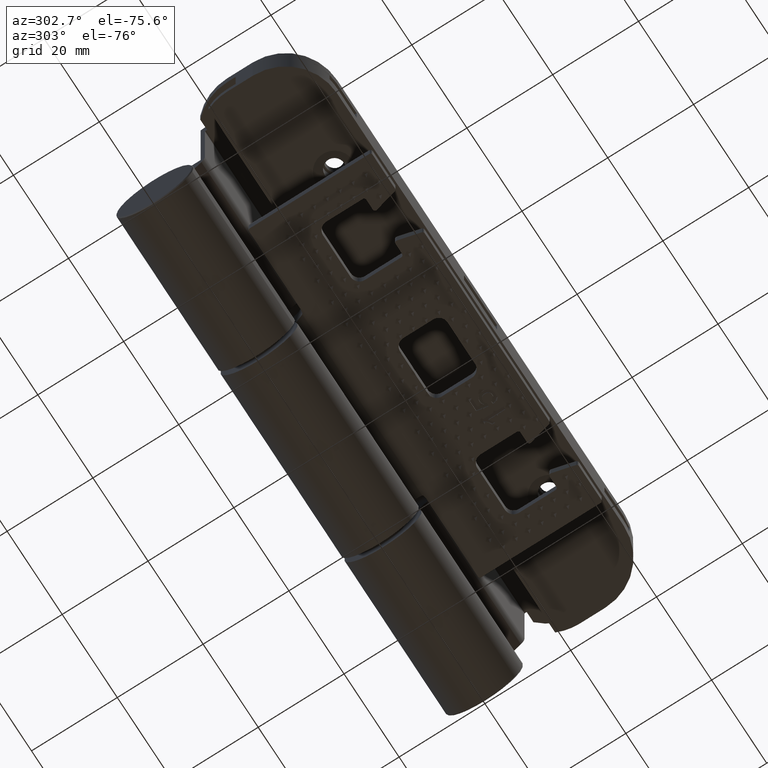
[diagram: clean part render]
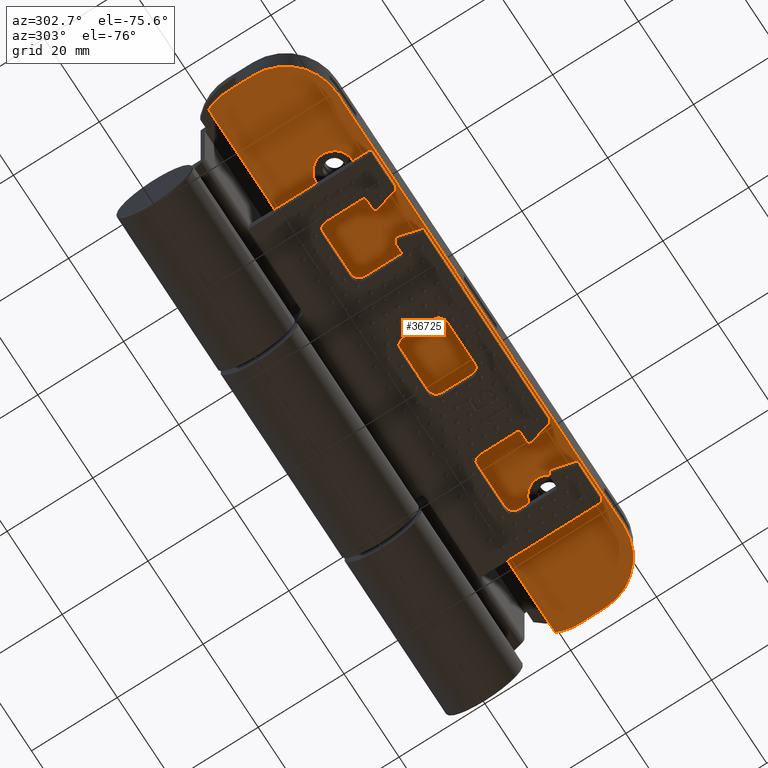
[diagram: same view with one face highlighted and labeled with its STEP entity id]
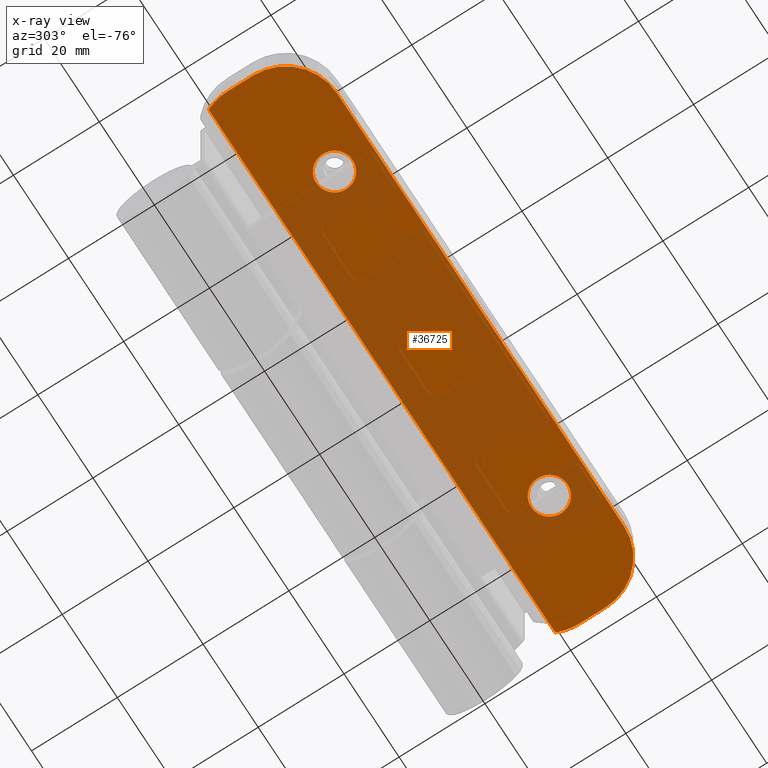
[diagram: x-ray of the same camera — body ghosted, the highlighted face saturated]
A machine part, auxiliary view. The second image highlights one B-rep face of the part: STEP entity #36725.
The next image is the same camera in x-ray: the body ghosted, the highlighted face saturated — about 47% of this face is hidden behind the body in this view.
In plain terms, the highlighted planar face has unit normal (0, -0, 1).
Its self-contained STEP definition (entity closure, byte-faithful):
#242 = EDGE_CURVE ( 'NONE', #28619, #4444, #31631, .T. ) ;
#469 = CIRCLE ( 'NONE', #8776, 4.249999999999990230 ) ;
#886 = EDGE_CURVE ( 'NONE', #8659, #4858, #5809, .T. ) ;
#1189 = CIRCLE ( 'NONE', #31901, 4.249999999999990230 ) ;
#1476 = EDGE_CURVE ( 'NONE', #36246, #27703, #469, .T. ) ;
#1643 = CARTESIAN_POINT ( 'NONE',  ( -2.500000000000043965, -39.00000000000018474, 2.000000000000017319 ) ) ;
#1655 = DIRECTION ( 'NONE',  ( -7.801111218853754580E-16, -1.000000000000000000, 5.215223172159257832E-16 ) ) ;
#2005 = EDGE_CURVE ( 'NONE', #12175, #36388, #49436, .T. ) ;
#2837 = EDGE_LOOP ( 'NONE', ( #20608, #18093, #4886, #3492, #4500, #15122, #7381, #37709 ) ) ;
#3492 = ORIENTED_EDGE ( 'NONE', *, *, #242, .T. ) ;
#4400 = EDGE_CURVE ( 'NONE', #47680, #28619, #49492, .T. ) ;
#4444 = VERTEX_POINT ( 'NONE', #5568 ) ;
#4500 = ORIENTED_EDGE ( 'NONE', *, *, #37109, .T. ) ;
#4858 = VERTEX_POINT ( 'NONE', #17920 ) ;
#4886 = ORIENTED_EDGE ( 'NONE', *, *, #4400, .T. ) ;
#5568 = CARTESIAN_POINT ( 'NONE',  ( 11.50000000000005329, 62.90871211463601753, 1.999999999999968914 ) ) ;
#5809 = LINE ( 'NONE', #38026, #35309 ) ;
#5964 = AXIS2_PLACEMENT_3D ( 'NONE', #9720, #30508, #6830 ) ;
#6769 = EDGE_CURVE ( 'NONE', #4858, #12175, #28030, .T. ) ;
#6830 = DIRECTION ( 'NONE',  ( -1.000000000000000000, -5.782411586589357639E-16, 2.168404344971009115E-16 ) ) ;
#7381 = ORIENTED_EDGE ( 'NONE', *, *, #6769, .T. ) ;
#8659 = VERTEX_POINT ( 'NONE', #36352 ) ;
#8776 = AXIS2_PLACEMENT_3D ( 'NONE', #51344, #31638, #39690 ) ;
#9523 = VECTOR ( 'NONE', #47958, 1000.000000000000000 ) ;
#9647 = PLANE ( 'NONE',  #49117 ) ;
#9703 = EDGE_CURVE ( 'NONE', #36388, #35676, #20878, .T. ) ;
#9720 = CARTESIAN_POINT ( 'NONE',  ( 0.4999999999999414912, -52.00000000000027001, 2.000000000000022649 ) ) ;
#9904 = FACE_BOUND ( 'NONE', #47880, .T. ) ;
#9912 = DIRECTION ( 'NONE',  ( -2.220446049250395911E-16, -5.215223172159268679E-16, 1.000000000000000000 ) ) ;
#11818 = DIRECTION ( 'NONE',  ( -1.000000000000000000, -5.782411586589366513E-16, 2.168404344971012319E-16 ) ) ;
#12175 = VERTEX_POINT ( 'NONE', #31015 ) ;
#12516 = EDGE_CURVE ( 'NONE', #35676, #47680, #22841, .T. ) ;
#15122 = ORIENTED_EDGE ( 'NONE', *, *, #886, .T. ) ;
#16854 = VERTEX_POINT ( 'NONE', #17376 ) ;
#17364 = DIRECTION ( 'NONE',  ( -1.000000000000000000, 0.000000000000000000, 2.040851148208012929E-16 ) ) ;
#17376 = CARTESIAN_POINT ( 'NONE',  ( -6.749999999999943157, 39.00000000000002842, 1.999999999999976685 ) ) ;
#17920 = CARTESIAN_POINT ( 'NONE',  ( 0.5000000000000316414, 64.00000000000021316, 1.999999999999974021 ) ) ;
#18093 = ORIENTED_EDGE ( 'NONE', *, *, #12516, .T. ) ;
#20608 = ORIENTED_EDGE ( 'NONE', *, *, #9703, .T. ) ;
#20878 = CIRCLE ( 'NONE', #5964, 11.99999999999999822 ) ;
#21096 = DIRECTION ( 'NONE',  ( 1.000000000000000000, 5.782411586589357639E-16, -2.168404344971009115E-16 ) ) ;
#21608 = DIRECTION ( 'NONE',  ( -1.000000000000000000, -7.801111218853760496E-16, 2.220446049250393939E-16 ) ) ;
#22038 = CARTESIAN_POINT ( 'NONE',  ( -2.499999999999977796, 39.00000000000003553, 1.999999999999977573 ) ) ;
#22231 = VERTEX_POINT ( 'NONE', #49879 ) ;
#22448 = CARTESIAN_POINT ( 'NONE',  ( -11.50000000000002842, -52.00000000000027001, 2.000000000000043521 ) ) ;
#22841 = LINE ( 'NONE', #46732, #29582 ) ;
#24338 = CARTESIAN_POINT ( 'NONE',  ( 11.49999999999996270, -62.90871211463584700, 2.000000000000027978 ) ) ;
#25558 = DIRECTION ( 'NONE',  ( 2.220446049250395911E-16, 5.215223172159268679E-16, -1.000000000000000000 ) ) ;
#26629 = CARTESIAN_POINT ( 'NONE',  ( 0.5000000000000247580, 52.00000000000018474, 1.999999999999972244 ) ) ;
#26647 = CARTESIAN_POINT ( 'NONE',  ( -6.750000000000031974, -39.00000000000019185, 2.000000000000016431 ) ) ;
#27703 = VERTEX_POINT ( 'NONE', #26647 ) ;
#28030 = CIRCLE ( 'NONE', #49602, 11.99999999999999822 ) ;
#28619 = VERTEX_POINT ( 'NONE', #24338 ) ;
#28691 = CARTESIAN_POINT ( 'NONE',  ( 1.749999999999968692, -39.00000000000019185, 2.000000000000018208 ) ) ;
#29582 = VECTOR ( 'NONE', #31152, 1000.000000000000000 ) ;
#30102 = DIRECTION ( 'NONE',  ( -1.000000000000000000, 0.000000000000000000, 2.040851148208012929E-16 ) ) ;
#30508 = DIRECTION ( 'NONE',  ( -2.220446049250395911E-16, -5.215223172159268679E-16, 1.000000000000000000 ) ) ;
#30823 = CIRCLE ( 'NONE', #38305, 4.249999999999990230 ) ;
#30933 = ORIENTED_EDGE ( 'NONE', *, *, #1476, .T. ) ;
#31015 = CARTESIAN_POINT ( 'NONE',  ( -11.49999999999997158, 52.00000000000018474, 1.999999999999975797 ) ) ;
#31152 = DIRECTION ( 'NONE',  ( 1.000000000000000000, 7.801111218853760496E-16, -2.220446049250393939E-16 ) ) ;
#31591 = DIRECTION ( 'NONE',  ( -2.220446049250395911E-16, -5.215223172159268679E-16, 1.000000000000000000 ) ) ;
#31631 = LINE ( 'NONE', #32130, #9523 ) ;
#31638 = DIRECTION ( 'NONE',  ( 2.220446049250395911E-16, 5.215223172159268679E-16, -1.000000000000000000 ) ) ;
#31901 = AXIS2_PLACEMENT_3D ( 'NONE', #22038, #37880, #30102 ) ;
#32130 = CARTESIAN_POINT ( 'NONE',  ( 11.49999999999995559, -62.90871211463584700, 2.000000000000027978 ) ) ;
#33177 = ORIENTED_EDGE ( 'NONE', *, *, #45267, .T. ) ;
#33560 = FACE_OUTER_BOUND ( 'NONE', #2837, .T. ) ;
#34358 = ORIENTED_EDGE ( 'NONE', *, *, #41218, .T. ) ;
#35247 = CIRCLE ( 'NONE', #43554, 4.249999999999990230 ) ;
#35309 = VECTOR ( 'NONE', #49428, 1000.000000000000000 ) ;
#35637 = CARTESIAN_POINT ( 'NONE',  ( 0.4999999999999310552, -64.00000000000024158, 2.000000000000036415 ) ) ;
#35676 = VERTEX_POINT ( 'NONE', #35637 ) ;
#36246 = VERTEX_POINT ( 'NONE', #28691 ) ;
#36352 = CARTESIAN_POINT ( 'NONE',  ( 6.500000000000028422, 64.00000000000031264, 1.999999999999960032 ) ) ;
#36388 = VERTEX_POINT ( 'NONE', #41668 ) ;
#36725 = ADVANCED_FACE ( 'NONE', ( #9904, #49368, #33560 ), #9647, .F. ) ;
#36898 = VECTOR ( 'NONE', #1655, 1000.000000000000000 ) ;
#37093 = AXIS2_PLACEMENT_3D ( 'NONE', #47417, #31591, #11818 ) ;
#37109 = EDGE_CURVE ( 'NONE', #4444, #8659, #50593, .T. ) ;
#37198 = DIRECTION ( 'NONE',  ( -2.220446049250397883E-16, 5.215223172159264735E-16, -1.000000000000000000 ) ) ;
#37534 = EDGE_LOOP ( 'NONE', ( #30933, #34358 ) ) ;
#37606 = DIRECTION ( 'NONE',  ( 2.220446049250395911E-16, 5.215223172159268679E-16, -1.000000000000000000 ) ) ;
#37642 = DIRECTION ( 'NONE',  ( 1.000000000000000000, 5.782411586589367500E-16, -2.168404344971012812E-16 ) ) ;
#37709 = ORIENTED_EDGE ( 'NONE', *, *, #2005, .T. ) ;
#37880 = DIRECTION ( 'NONE',  ( 2.220446049250395911E-16, 5.215223172159268679E-16, -1.000000000000000000 ) ) ;
#38026 = CARTESIAN_POINT ( 'NONE',  ( 6.500000000000028422, 64.00000000000031264, 1.999999999999960032 ) ) ;
#38305 = AXIS2_PLACEMENT_3D ( 'NONE', #1643, #25558, #48660 ) ;
#39690 = DIRECTION ( 'NONE',  ( -1.000000000000000000, 0.000000000000000000, 2.040851148208012929E-16 ) ) ;
#41218 = EDGE_CURVE ( 'NONE', #27703, #36246, #30823, .T. ) ;
#41517 = CARTESIAN_POINT ( 'NONE',  ( -2.499999999999977796, 39.00000000000003553, 1.999999999999977573 ) ) ;
#41668 = CARTESIAN_POINT ( 'NONE',  ( -11.50000000000002842, -52.00000000000027001, 2.000000000000043521 ) ) ;
#41675 = ORIENTED_EDGE ( 'NONE', *, *, #46660, .T. ) ;
#42062 = DIRECTION ( 'NONE',  ( -2.220446049250395911E-16, -5.215223172159268679E-16, 1.000000000000000000 ) ) ;
#43554 = AXIS2_PLACEMENT_3D ( 'NONE', #41517, #37606, #17364 ) ;
#45267 = EDGE_CURVE ( 'NONE', #16854, #22231, #35247, .T. ) ;
#45501 = CARTESIAN_POINT ( 'NONE',  ( 0.4999999999999414912, -52.00000000000027001, 2.000000000000022649 ) ) ;
#45611 = AXIS2_PLACEMENT_3D ( 'NONE', #45952, #42062, #37642 ) ;
#45952 = CARTESIAN_POINT ( 'NONE',  ( 6.500000000000023093, 52.00000000000016342, 1.999999999999970468 ) ) ;
#46660 = EDGE_CURVE ( 'NONE', #22231, #16854, #1189, .T. ) ;
#46732 = CARTESIAN_POINT ( 'NONE',  ( 6.499999999999931610, -64.00000000000014211, 2.000000000000031086 ) ) ;
#47417 = CARTESIAN_POINT ( 'NONE',  ( 6.499999999999946709, -52.00000000000031974, 2.000000000000026201 ) ) ;
#47680 = VERTEX_POINT ( 'NONE', #50359 ) ;
#47880 = EDGE_LOOP ( 'NONE', ( #41675, #33177 ) ) ;
#47958 = DIRECTION ( 'NONE',  ( 7.801111218853754580E-16, 1.000000000000000000, -5.215223172159257832E-16 ) ) ;
#48660 = DIRECTION ( 'NONE',  ( -1.000000000000000000, 0.000000000000000000, 2.040851148208012929E-16 ) ) ;
#49117 = AXIS2_PLACEMENT_3D ( 'NONE', #45501, #37198, #21608 ) ;
#49368 = FACE_BOUND ( 'NONE', #37534, .T. ) ;
#49428 = DIRECTION ( 'NONE',  ( -1.000000000000000000, -7.801111218853760496E-16, 2.220446049250393939E-16 ) ) ;
#49436 = LINE ( 'NONE', #22448, #36898 ) ;
#49492 = CIRCLE ( 'NONE', #37093, 11.99999999999998046 ) ;
#49602 = AXIS2_PLACEMENT_3D ( 'NONE', #26629, #9912, #21096 ) ;
#49879 = CARTESIAN_POINT ( 'NONE',  ( 1.750000000000018874, 39.00000000000002842, 1.999999999999978462 ) ) ;
#50359 = CARTESIAN_POINT ( 'NONE',  ( 6.499999999999931610, -64.00000000000014211, 2.000000000000031086 ) ) ;
#50593 = CIRCLE ( 'NONE', #45611, 11.99999999999997868 ) ;
#51344 = CARTESIAN_POINT ( 'NONE',  ( -2.500000000000043965, -39.00000000000018474, 2.000000000000017319 ) ) ;